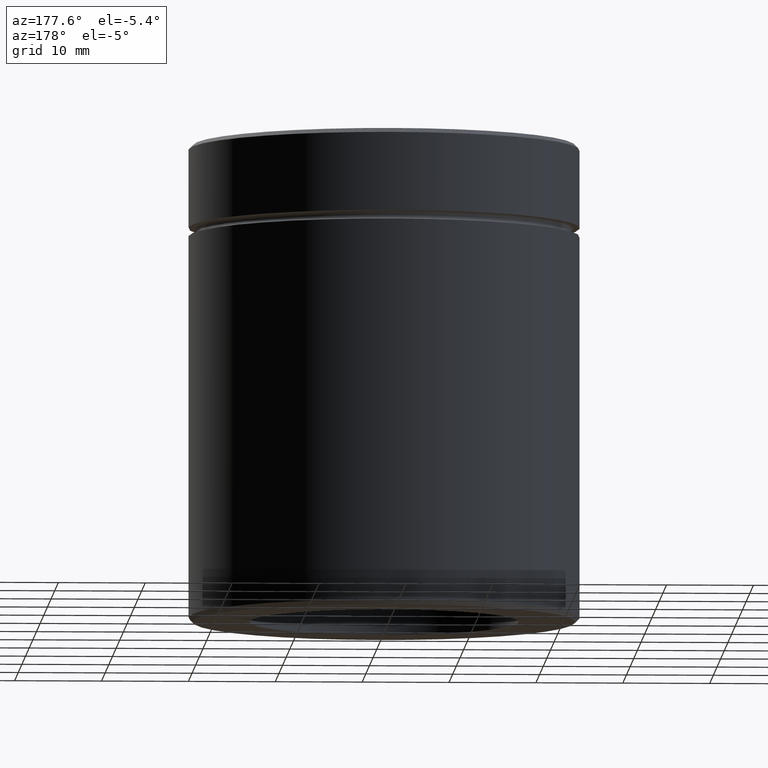
[diagram: clean part render]
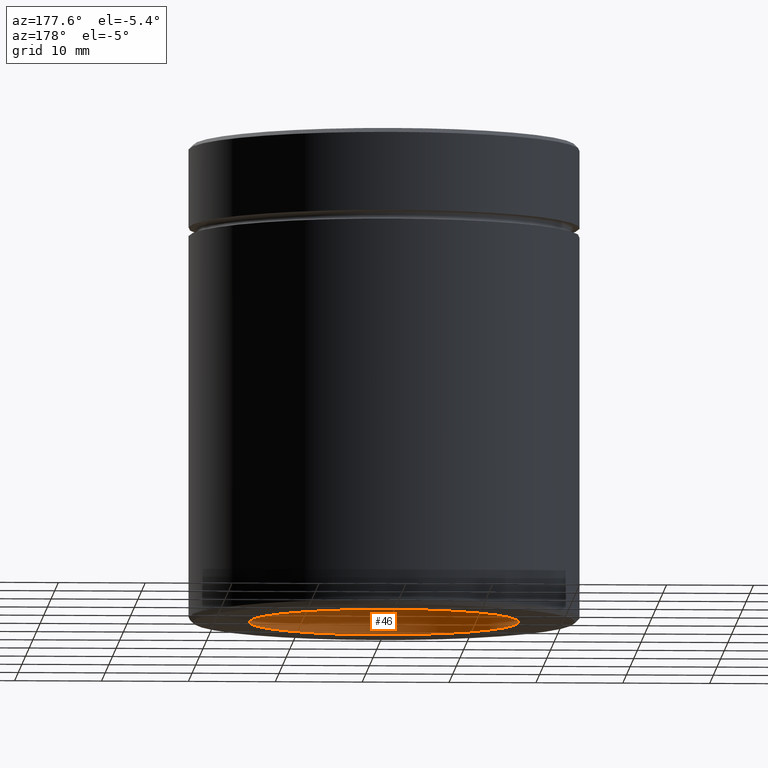
[diagram: same view with one face highlighted and labeled with its STEP entity id]
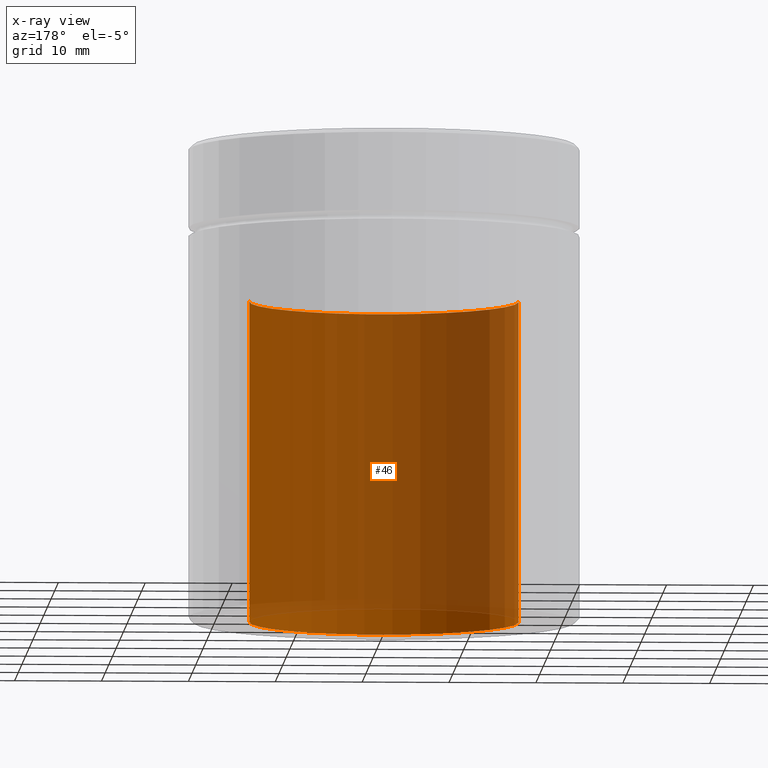
[diagram: x-ray of the same camera — body ghosted, the highlighted face saturated]
A machine part, auxiliary view. The second image highlights one B-rep face of the part: STEP entity #46.
The next image is the same camera in x-ray: the body ghosted, the highlighted face saturated — about 94% of this face is hidden behind the body in this view.
In plain terms, the highlighted cylindrical surface (partial cylindrical patch) has radius 15.5 mm, axis along (-0, -0, -1).
Its self-contained STEP definition (entity closure, byte-faithful):
#3 = DIRECTION ( 'NONE',  ( 0.000000000000000000, 0.000000000000000000, -1.000000000000000000 ) ) ;
#14 = ORIENTED_EDGE ( 'NONE', *, *, #507, .T. ) ;
#39 = CARTESIAN_POINT ( 'NONE',  ( -15.50000000000000000, 0.000000000000000000, -55.00000000000000000 ) ) ;
#41 = VERTEX_POINT ( 'NONE', #338 ) ;
#46 = ADVANCED_FACE ( 'NONE', ( #557 ), #325, .F. ) ;
#93 = EDGE_CURVE ( 'NONE', #280, #447, #348, .T. ) ;
#96 = VERTEX_POINT ( 'NONE', #39 ) ;
#129 = CARTESIAN_POINT ( 'NONE',  ( 0.000000000000000000, 0.000000000000000000, -18.00000000000000355 ) ) ;
#168 = DIRECTION ( 'NONE',  ( -1.000000000000000000, 0.000000000000000000, 0.000000000000000000 ) ) ;
#174 = CARTESIAN_POINT ( 'NONE',  ( 0.000000000000000000, 0.000000000000000000, -18.00000000000000355 ) ) ;
#221 = LINE ( 'NONE', #223, #489 ) ;
#223 = CARTESIAN_POINT ( 'NONE',  ( 15.50000000000000000, 1.898202538678397557E-15, -18.00000000000000355 ) ) ;
#236 = DIRECTION ( 'NONE',  ( 0.000000000000000000, 0.000000000000000000, -1.000000000000000000 ) ) ;
#238 = CARTESIAN_POINT ( 'NONE',  ( 15.50000000000000000, 1.898202538678397557E-15, -18.00000000000000355 ) ) ;
#252 = EDGE_LOOP ( 'NONE', ( #417, #373, #14, #560 ) ) ;
#273 = DIRECTION ( 'NONE',  ( -0.000000000000000000, -0.000000000000000000, -1.000000000000000000 ) ) ;
#280 = VERTEX_POINT ( 'NONE', #238 ) ;
#282 = AXIS2_PLACEMENT_3D ( 'NONE', #174, #3, #483 ) ;
#313 = CARTESIAN_POINT ( 'NONE',  ( -15.50000000000000000, 0.000000000000000000, -18.00000000000000355 ) ) ;
#325 = CYLINDRICAL_SURFACE ( 'NONE', #480, 15.50000000000000000 ) ;
#338 = CARTESIAN_POINT ( 'NONE',  ( 15.50000000000000000, 1.898202538678397557E-15, -55.00000000000000000 ) ) ;
#348 = CIRCLE ( 'NONE', #282, 15.50000000000000000 ) ;
#356 = LINE ( 'NONE', #313, #402 ) ;
#370 = CARTESIAN_POINT ( 'NONE',  ( 0.000000000000000000, 0.000000000000000000, -55.00000000000000000 ) ) ;
#373 = ORIENTED_EDGE ( 'NONE', *, *, #377, .T. ) ;
#377 = EDGE_CURVE ( 'NONE', #280, #41, #221, .T. ) ;
#402 = VECTOR ( 'NONE', #273, 1000.000000000000000 ) ;
#417 = ORIENTED_EDGE ( 'NONE', *, *, #93, .F. ) ;
#421 = DIRECTION ( 'NONE',  ( -0.000000000000000000, -0.000000000000000000, -1.000000000000000000 ) ) ;
#443 = DIRECTION ( 'NONE',  ( -0.000000000000000000, -0.000000000000000000, -1.000000000000000000 ) ) ;
#447 = VERTEX_POINT ( 'NONE', #498 ) ;
#480 = AXIS2_PLACEMENT_3D ( 'NONE', #129, #421, #552 ) ;
#483 = DIRECTION ( 'NONE',  ( -1.000000000000000000, 0.000000000000000000, 0.000000000000000000 ) ) ;
#489 = VECTOR ( 'NONE', #443, 1000.000000000000000 ) ;
#498 = CARTESIAN_POINT ( 'NONE',  ( -15.50000000000000000, 0.000000000000000000, -18.00000000000000355 ) ) ;
#507 = EDGE_CURVE ( 'NONE', #41, #96, #527, .T. ) ;
#527 = CIRCLE ( 'NONE', #549, 15.50000000000000000 ) ;
#536 = EDGE_CURVE ( 'NONE', #447, #96, #356, .T. ) ;
#549 = AXIS2_PLACEMENT_3D ( 'NONE', #370, #236, #168 ) ;
#552 = DIRECTION ( 'NONE',  ( -1.000000000000000000, 0.000000000000000000, 0.000000000000000000 ) ) ;
#557 = FACE_OUTER_BOUND ( 'NONE', #252, .T. ) ;
#560 = ORIENTED_EDGE ( 'NONE', *, *, #536, .F. ) ;